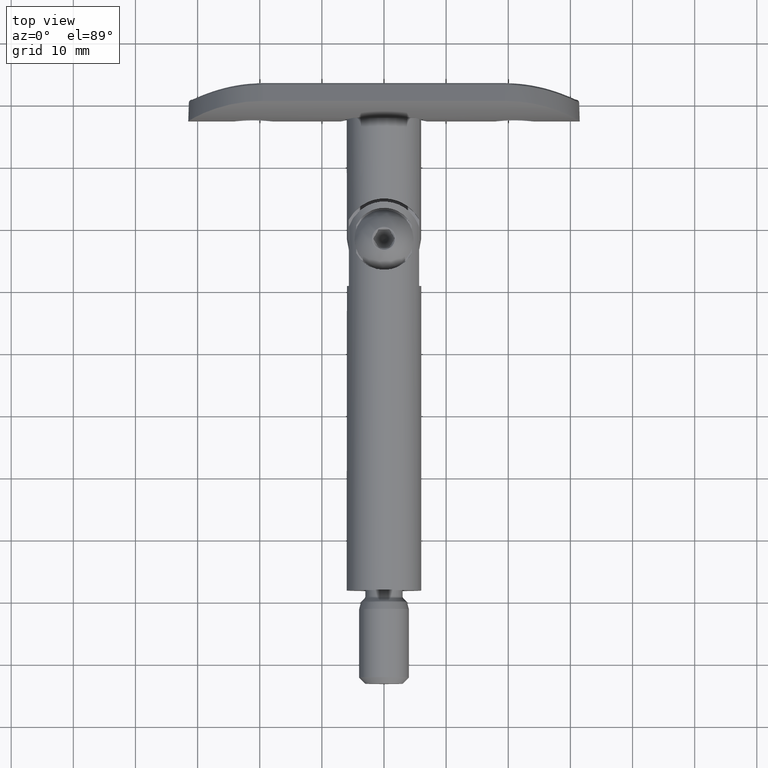
[diagram: clean part render]
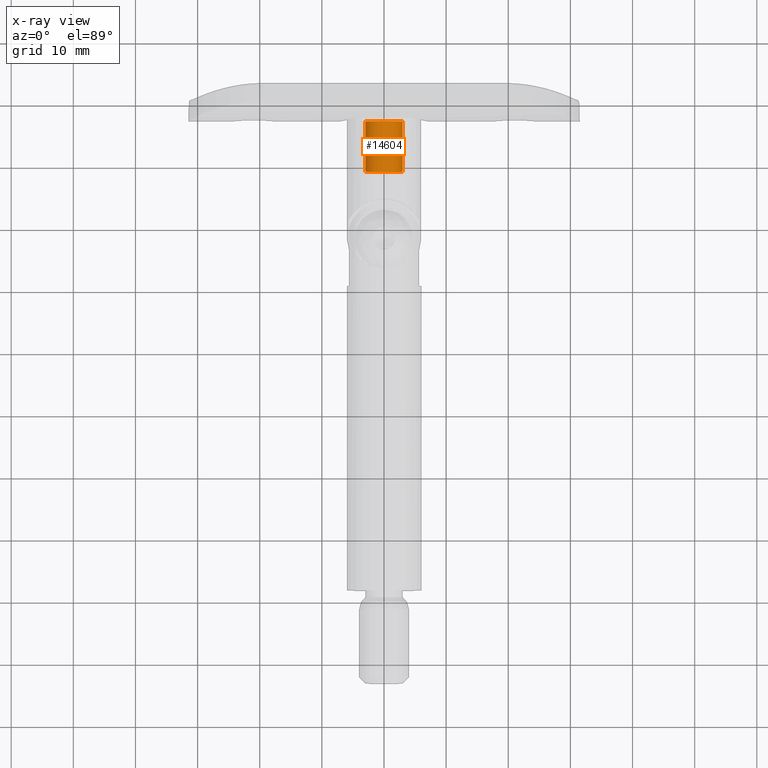
[diagram: x-ray — body ghosted, one internal face saturated and labeled with its STEP entity id]
A machine part, top view, then the same camera in x-ray: the body is ghosted and one INTERNAL B-rep face — a face not visible from any outside direction — is saturated and labeled: STEP entity #14604.
In plain terms, the highlighted cylindrical surface (bore or boss wall) has radius 3 mm, axis along (-0, 1, -0).
Its self-contained STEP definition (entity closure, byte-faithful):
#500 = FACE_OUTER_BOUND ( 'NONE', #6004, .T. ) ;
#683 = ORIENTED_EDGE ( 'NONE', *, *, #12047, .F. ) ;
#1393 = CARTESIAN_POINT ( 'NONE',  ( 0.000000000000000000, -1.396097351027982622E-15, 11.40000000000000036 ) ) ;
#2537 = ORIENTED_EDGE ( 'NONE', *, *, #12595, .T. ) ;
#3881 = DIRECTION ( 'NONE',  ( 0.000000000000000000, 1.000000000000000000, 1.445602896647341135E-16 ) ) ;
#3914 = VERTEX_POINT ( 'NONE', #4661 ) ;
#4661 = CARTESIAN_POINT ( 'NONE',  ( 0.000000000000000000, 2.999999999999995559, 3.299999999999997158 ) ) ;
#5607 = CIRCLE ( 'NONE', #6623, 2.999999999999995559 ) ;
#6004 = EDGE_LOOP ( 'NONE', ( #683 ) ) ;
#6380 = EDGE_LOOP ( 'NONE', ( #2537 ) ) ;
#6623 = AXIS2_PLACEMENT_3D ( 'NONE', #1393, #9892, #14904 ) ;
#6646 = CARTESIAN_POINT ( 'NONE',  ( 0.000000000000000000, 0.000000000000000000, 0.000000000000000000 ) ) ;
#7578 = CARTESIAN_POINT ( 'NONE',  ( 0.000000000000000000, -4.041334437186261072E-16, 3.299999999999997158 ) ) ;
#8122 = FACE_OUTER_BOUND ( 'NONE', #6380, .T. ) ;
#8767 = CIRCLE ( 'NONE', #14985, 2.999999999999996003 ) ;
#9892 = DIRECTION ( 'NONE',  ( -0.000000000000000000, 1.224646799147353454E-16, -1.000000000000000000 ) ) ;
#10639 = CYLINDRICAL_SURFACE ( 'NONE', #15816, 2.999999999999995559 ) ;
#11614 = DIRECTION ( 'NONE',  ( -0.000000000000000000, 1.224646799147353207E-16, -1.000000000000000000 ) ) ;
#12047 = EDGE_CURVE ( 'NONE', #3914, #3914, #8767, .T. ) ;
#12064 = CARTESIAN_POINT ( 'NONE',  ( 0.000000000000000000, -2.999999999999996891, 11.40000000000000036 ) ) ;
#12595 = EDGE_CURVE ( 'NONE', #14832, #14832, #5607, .T. ) ;
#13941 = DIRECTION ( 'NONE',  ( -0.000000000000000000, 1.224646799147352961E-16, -1.000000000000000000 ) ) ;
#14604 = ADVANCED_FACE ( 'NONE', ( #8122, #500 ), #10639, .T. ) ;
#14832 = VERTEX_POINT ( 'NONE', #12064 ) ;
#14904 = DIRECTION ( 'NONE',  ( 0.000000000000000000, -1.000000000000000000, 0.000000000000000000 ) ) ;
#14985 = AXIS2_PLACEMENT_3D ( 'NONE', #7578, #13941, #3881 ) ;
#15422 = DIRECTION ( 'NONE',  ( 0.000000000000000000, 1.000000000000000000, 1.224646799147353207E-16 ) ) ;
#15816 = AXIS2_PLACEMENT_3D ( 'NONE', #6646, #11614, #15422 ) ;